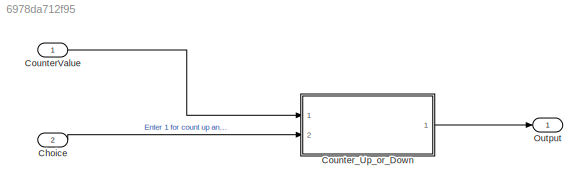
MODEL slx_6978da712f95
KIND model
CONFIG AbsTol = auto
CONFIG EnableMultiTasking = off
CONFIG FixedStep = auto
CONFIG MaxStep = auto
CONFIG MinStep = auto
CONFIG RelTol = 1e-3
CONFIG SampleTimeConstraint = Unconstrained
CONFIG SolverName = VariableStepAuto
CONFIG StartTime = 0.0
CONFIG StopTime = 10.0
BLOCK [Inport] Choice
  Port = 2
BLOCK [Inport] CounterValue
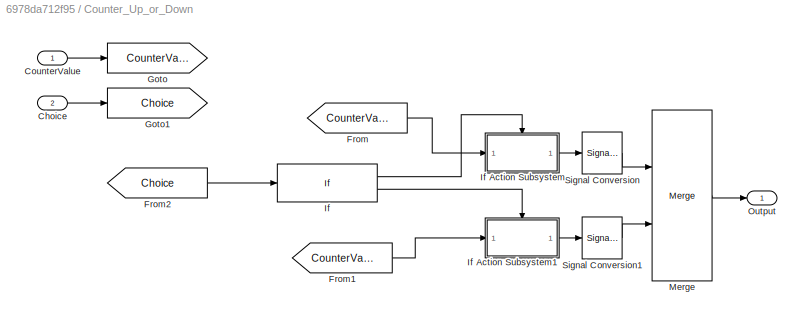
BLOCK [SubSystem] Counter_Up_or_Down
  Ports = [2, 1]
  RTWFcnNameOpts = Use subsystem name
  RTWFileNameOpts = Use subsystem name
  RTWSystemCode = Reusable function
  RequestExecContextInheritance = off
  TreatAsAtomicUnit = on
BLOCK [Inport] Counter_Up_or_Down/Choice
  Port = 2
BLOCK [Inport] Counter_Up_or_Down/CounterValue
BLOCK [From] Counter_Up_or_Down/From
  GotoTag = CounterValue
BLOCK [From] Counter_Up_or_Down/From1
  GotoTag = CounterValue
BLOCK [From] Counter_Up_or_Down/From2
  GotoTag = Choice
BLOCK [Goto] Counter_Up_or_Down/Goto
  GotoTag = CounterValue
BLOCK [Goto] Counter_Up_or_Down/Goto1
  GotoTag = Choice
BLOCK [If] Counter_Up_or_Down/If
  ElseIfExpressions = u1 == 0
  IfExpression = u1 == 1
  Ports = [1, 2]
  ShowElse = off
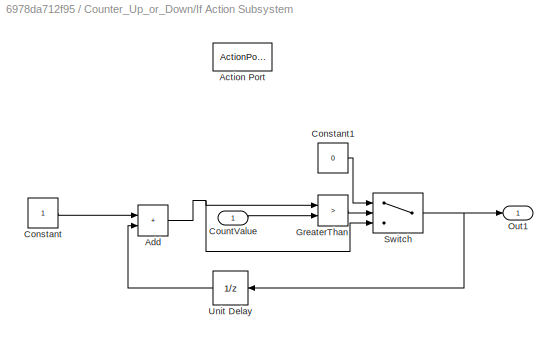
BLOCK [SubSystem] Counter_Up_or_Down/If Action Subsystem
  Ports = [1, 1, 0, 0, 0, 0, 0, 1]
  RequestExecContextInheritance = off
  TreatAsAtomicUnit = on
BLOCK [ActionPort] Counter_Up_or_Down/If Action Subsystem/Action Port
  ActionPortLabel = if(u1 == 1)
BLOCK [Sum] Counter_Up_or_Down/If Action Subsystem/Add
  IconShape = rectangular
  Ports = [2, 1]
BLOCK [Constant] Counter_Up_or_Down/If Action Subsystem/Constant
BLOCK [Constant] Counter_Up_or_Down/If Action Subsystem/Constant1
  Value = 0
BLOCK [Inport] Counter_Up_or_Down/If Action Subsystem/CountValue
BLOCK [RelationalOperator] Counter_Up_or_Down/If Action Subsystem/GreaterThan
  InputSameDT = off
  Operator = >
  OutDataTypeStr = boolean
  Ports = [2, 1]
  RndMeth = Simplest
BLOCK [Outport] Counter_Up_or_Down/If Action Subsystem/Out1
BLOCK [Switch] Counter_Up_or_Down/If Action Subsystem/Switch
  Criteria = u2 ~= 0
  InputSameDT = off
  SaturateOnIntegerOverflow = off
BLOCK [UnitDelay] Counter_Up_or_Down/If Action Subsystem/Unit Delay
  HasFrameUpgradeWarning = on
  InitialCondition = -1
  NameLocation = top
  SampleTime = -1
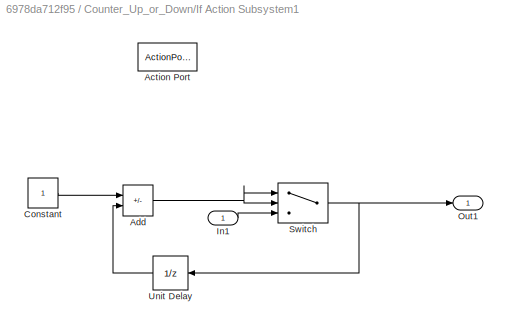
BLOCK [SubSystem] Counter_Up_or_Down/If Action Subsystem1
  Ports = [1, 1, 0, 0, 0, 0, 0, 1]
  RequestExecContextInheritance = off
  TreatAsAtomicUnit = on
BLOCK [ActionPort] Counter_Up_or_Down/If Action Subsystem1/Action Port
  ActionPortLabel = elseif(u1 == 0)
BLOCK [Sum] Counter_Up_or_Down/If Action Subsystem1/Add
  IconShape = rectangular
  Inputs = -+
  Ports = [2, 1]
BLOCK [Constant] Counter_Up_or_Down/If Action Subsystem1/Constant
BLOCK [Inport] Counter_Up_or_Down/If Action Subsystem1/In1
BLOCK [Outport] Counter_Up_or_Down/If Action Subsystem1/Out1
BLOCK [Switch] Counter_Up_or_Down/If Action Subsystem1/Switch
  InputSameDT = off
  SaturateOnIntegerOverflow = off
BLOCK [UnitDelay] Counter_Up_or_Down/If Action Subsystem1/Unit Delay
  HasFrameUpgradeWarning = on
  NameLocation = top
  SampleTime = -1
BLOCK [Merge] Counter_Up_or_Down/Merge
  Ports = [2, 1]
BLOCK [Outport] Counter_Up_or_Down/Output
BLOCK [SignalConversion] Counter_Up_or_Down/Signal Conversion
  OverrideOpt = off
BLOCK [SignalConversion] Counter_Up_or_Down/Signal Conversion1
  OverrideOpt = off
BLOCK [Outport] Output
LINE Choice:1 -> Counter_Up_or_Down:2
LINE CounterValue:1 -> Counter_Up_or_Down:1
LINE Counter_Up_or_Down/Choice:1 -> Counter_Up_or_Down/Goto1:1
LINE Counter_Up_or_Down/CounterValue:1 -> Counter_Up_or_Down/Goto:1
LINE Counter_Up_or_Down/From1:1 -> Counter_Up_or_Down/If Action Subsystem1:1
LINE Counter_Up_or_Down/From2:1 -> Counter_Up_or_Down/If:1
LINE Counter_Up_or_Down/From:1 -> Counter_Up_or_Down/If Action Subsystem:1
NET Counter_Up_or_Down/If Action Subsystem/Add:1 -> Counter_Up_or_Down/If Action Subsystem/GreaterThan:1, Counter_Up_or_Down/If Action Subsystem/Switch:3
LINE Counter_Up_or_Down/If Action Subsystem/Constant1:1 -> Counter_Up_or_Down/If Action Subsystem/Switch:1
LINE Counter_Up_or_Down/If Action Subsystem/Constant:1 -> Counter_Up_or_Down/If Action Subsystem/Add:1
LINE Counter_Up_or_Down/If Action Subsystem/CountValue:1 -> Counter_Up_or_Down/If Action Subsystem/GreaterThan:2
LINE Counter_Up_or_Down/If Action Subsystem/GreaterThan:1 -> Counter_Up_or_Down/If Action Subsystem/Switch:2
NET Counter_Up_or_Down/If Action Subsystem/Switch:1 -> Counter_Up_or_Down/If Action Subsystem/Out1:1, Counter_Up_or_Down/If Action Subsystem/Unit Delay:1
LINE Counter_Up_or_Down/If Action Subsystem/Unit Delay:1 -> Counter_Up_or_Down/If Action Subsystem/Add:2
NET Counter_Up_or_Down/If Action Subsystem1/Add:1 -> Counter_Up_or_Down/If Action Subsystem1/Switch:1, Counter_Up_or_Down/If Action Subsystem1/Switch:2
LINE Counter_Up_or_Down/If Action Subsystem1/Constant:1 -> Counter_Up_or_Down/If Action Subsystem1/Add:1
LINE Counter_Up_or_Down/If Action Subsystem1/In1:1 -> Counter_Up_or_Down/If Action Subsystem1/Switch:3
NET Counter_Up_or_Down/If Action Subsystem1/Switch:1 -> Counter_Up_or_Down/If Action Subsystem1/Out1:1, Counter_Up_or_Down/If Action Subsystem1/Unit Delay:1
LINE Counter_Up_or_Down/If Action Subsystem1/Unit Delay:1 -> Counter_Up_or_Down/If Action Subsystem1/Add:2
LINE Counter_Up_or_Down/If Action Subsystem1:1 -> Counter_Up_or_Down/Signal Conversion1:1
LINE Counter_Up_or_Down/If Action Subsystem:1 -> Counter_Up_or_Down/Signal Conversion:1
LINE Counter_Up_or_Down/If:1 -> Counter_Up_or_Down/If Action Subsystem:ifaction
LINE Counter_Up_or_Down/If:2 -> Counter_Up_or_Down/If Action Subsystem1:ifaction
LINE Counter_Up_or_Down/Merge:1 -> Counter_Up_or_Down/Output:1
LINE Counter_Up_or_Down/Signal Conversion1:1 -> Counter_Up_or_Down/Merge:2
LINE Counter_Up_or_Down/Signal Conversion:1 -> Counter_Up_or_Down/Merge:1
LINE Counter_Up_or_Down:1 -> Output:1
note: NET lines group one-source signal fan-out (src -> all destinations, sorted); 1:1 wires keep LINE
